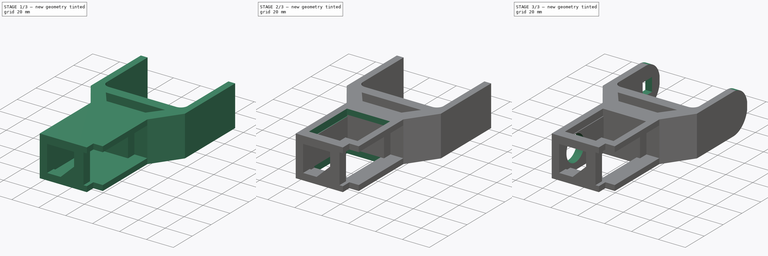
[diagram: build sequence overview — one tinted view per stage of 3, left to right]
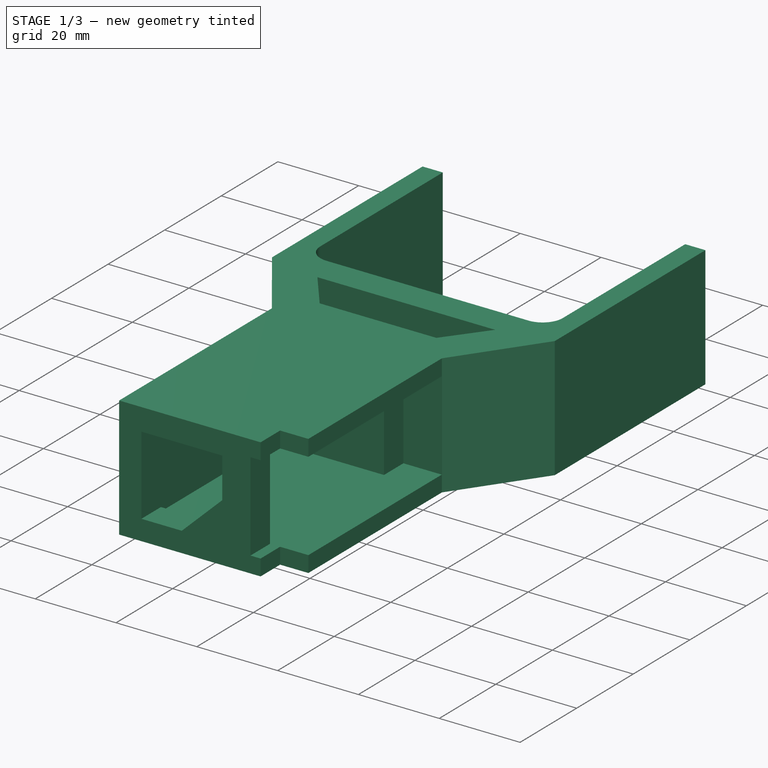
[diagram: stage 1 of 3 — iso view after this stage's code; geometry added in this stage tinted green]
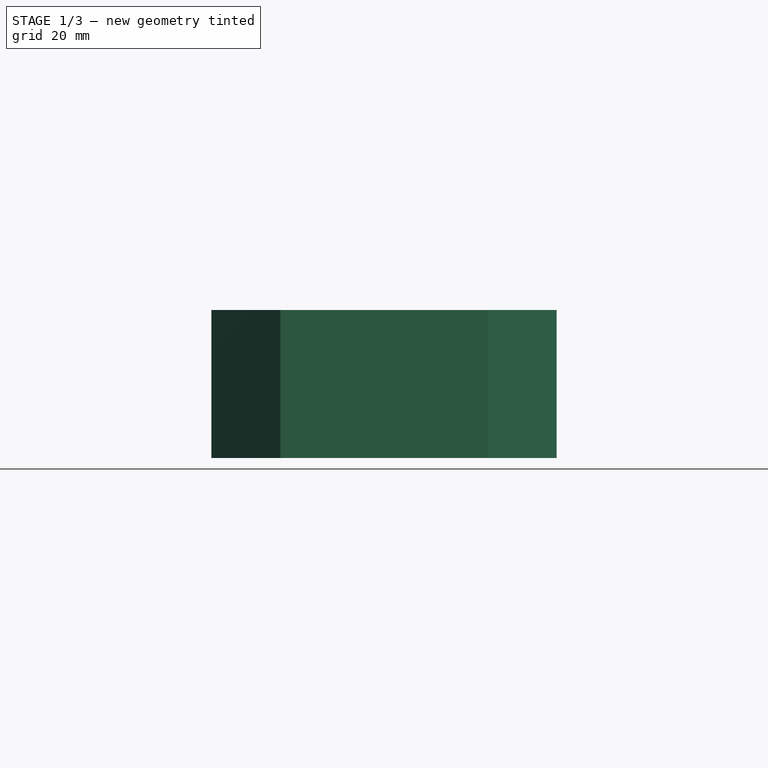
[diagram: stage 1 of 3 — front view after this stage's code; geometry added in this stage tinted green]
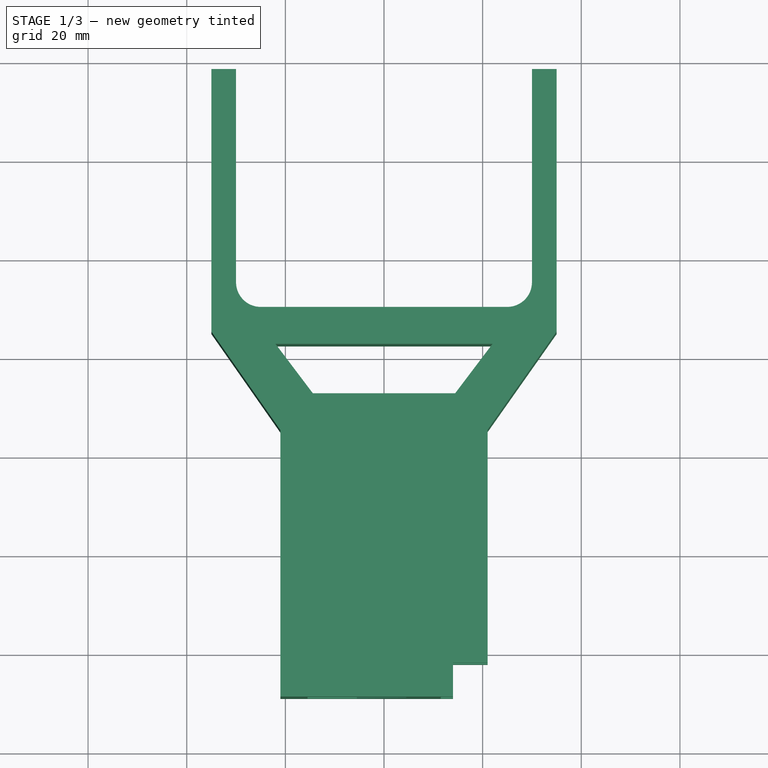
[diagram: stage 1 of 3 — top view after this stage's code; geometry added in this stage tinted green]
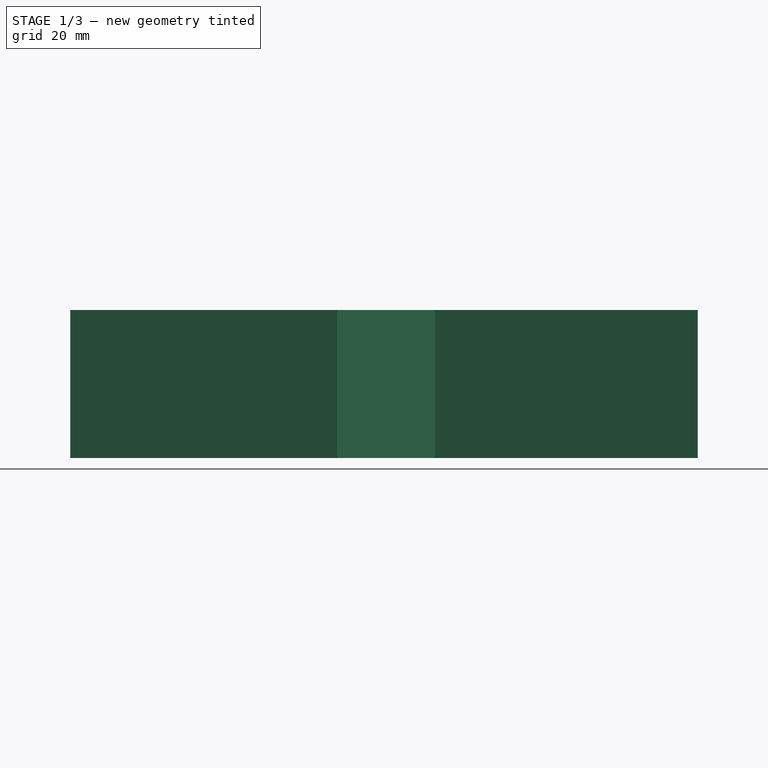
[diagram: stage 1 of 3 — right view after this stage's code; geometry added in this stage tinted green]
FCSTD DOCUMENT  (FreeCAD 0.20R29410 (Git))
Label: femur
License: All rights reserved
LicenseURL: http://en.wikipedia.org/wiki/All_rights_reserved
objects: Sketcher::SketchObject×9, PartDesign::Pocket×7, PartDesign::Pad×1, PartDesign::Body×1
note: 26 computed .brp shape members not serialized (recipe doc carries the construction recipe); baked Part::Feature solids carry a one-line shape summary decoded from their .brp

FEATURE [Sketcher::SketchObject] Sketch
  FullyConstrained = true
  MapMode = 5
  Support = -> [XY_Plane]
  sketch-geometry (26):
    g0: LineSegment StartX=-35 StartY=98.35 StartZ=0 EndX=-35 EndY=45.1 EndZ=0
    g1: LineSegment StartX=-35 StartY=45.1 StartZ=0 EndX=-21 EndY=25.1 EndZ=0
    g2: LineSegment StartX=-21 StartY=25.1 StartZ=0 EndX=-21 EndY=-28.9 EndZ=0
    g3: LineSegment StartX=-21 StartY=-28.9 StartZ=0 EndX=14 EndY=-28.9 EndZ=0
    g4: LineSegment StartX=14 StartY=-28.9 StartZ=0 EndX=14 EndY=-22 EndZ=0
    g5: LineSegment StartX=14 StartY=-22 StartZ=0 EndX=21 EndY=-22 EndZ=0
    g6: LineSegment StartX=21 StartY=-22 StartZ=0 EndX=21 EndY=25.2 EndZ=0
    g7: LineSegment StartX=21 StartY=25.2 StartZ=0 EndX=35 EndY=45.1 EndZ=0
    g8: LineSegment StartX=35 StartY=45.1 StartZ=0 EndX=35 EndY=98.35 EndZ=0
    g9: LineSegment StartX=35 StartY=98.35 StartZ=0 EndX=30 EndY=98.35 EndZ=0
    g10: LineSegment StartX=30 StartY=98.35 StartZ=0 EndX=30 EndY=55.1 EndZ=0
    g11: LineSegment StartX=-30 StartY=55.1 StartZ=0 EndX=-30 EndY=98.35 EndZ=0
    g12: LineSegment StartX=-30 StartY=98.35 StartZ=0 EndX=-35 EndY=98.35 EndZ=0
    g13: GeomPoint X=0 Y=-14.65 Z=0
    g14: GeomPoint X=-3 Y=85.35 Z=0
    g15: ArcOfCircle CenterX=-25 CenterY=55.1 CenterZ=0 NormalX=0 NormalY=0 NormalZ=1 AngleXU=0 Radius=5 StartAngle=3.14159 EndAngle=4.71239
    g16: ArcOfCircle CenterX=25 CenterY=55.1 CenterZ=0 NormalX=0 NormalY=0 NormalZ=1 AngleXU=0 Radius=5 StartAngle=4.71239 EndAngle=6.28319
    g17: Circle CenterX=-25 CenterY=50.1 CenterZ=0 NormalX=0 NormalY=0 NormalZ=1 AngleXU=0 Radius=1
    g18: Circle CenterX=25 CenterY=50.1 CenterZ=0 NormalX=0 NormalY=0 NormalZ=1 AngleXU=0 Radius=1
    g19: BSplineCurve PolesCount=2 KnotsCount=2 Degree=1 IsPeriodic=0
    g20: GeomPoint X=-25 Y=50.1 Z=0
    g21: GeomPoint X=25 Y=50.1 Z=0
    g22: LineSegment StartX=-22 StartY=42.6 StartZ=0 EndX=-14.4375 EndY=32.6 EndZ=0
    g23: LineSegment StartX=-14.4375 StartY=32.6 StartZ=0 EndX=14.4375 EndY=32.6 EndZ=0
    g24: LineSegment StartX=14.4375 StartY=32.6 StartZ=0 EndX=22 EndY=42.6 EndZ=0
    g25: LineSegment StartX=22 StartY=42.6 StartZ=0 EndX=-22 EndY=42.6 EndZ=0
  constraints (72):
    c: Vertical(g0)
    c: Coincident(g0,g1)
    c: Coincident(g1,g2)
    c: Vertical(g2)
    c: Coincident(g2,g3)
    c: Horizontal(g3)
    c: Coincident(g3,g4)
    c: Coincident(g4,g5)
    c: Horizontal(g5)
    c: Coincident(g5,g6)
    c: Coincident(g6,g7)
    c: Coincident(g7,g8)
    c: Vertical(g8)
    c: Coincident(g8,g9)
    c: Coincident(g9,g10)
    c: Vertical(g11)
    c: Coincident(g11,g12)
    c: Coincident(g12,g0)
    c: DistanceX(g11,g10) = 60
    c: DistanceX(g9,g9) = 5
    c: DistanceX(g12,g12) = 5
    c: DistanceX(g3,g3) = 35
    c: DistanceX(g5,g5) = 7
    c: Perpendicular(g-1,g4)
    c: Perpendicular(g-2,g12)
    c: Perpendicular(g-2,g9)
    c: DistanceY(g2,g2) = 54
    c: DistanceY(g6,g6) = 47.2
    c: DistanceY(g4,g4) = 6.9
    c: Perpendicular(g-1,g10)
    c: DistanceY(g10,g10) = 43.25
    c: DistanceY(g11,g11) = 43.25
    c: DistanceX(g1,g6) = 42
    c: DistanceY(g13,g14) = 100
    c: DistanceX(g0,g14) = 32
    c: DistanceY(g2,g13) = 14.25
    c: DistanceX(g2,g13) = 21
    c: DistanceX(g0,g1) = 14
    c: DistanceY(g5,g-1) = 22
    c: DistanceX(g13,g-1) = 0
    c: Coincident(g15,g11)
    c: Radius(g15) = 5
    c: DistanceY(g15,g11) = 5
    c: DistanceY(g0,g11) = 10
    c: Coincident(g16,g10)
    c: Radius(g16) = 5
    c: DistanceX(g16,g10) = 5
    c: DistanceY(g7,g10) = 10
    c: Weight(g17) = 1
    c: Coincident(g19,g15)
    c: Equal(g17,g18)
    c: Coincident(g19,g16)
    c: InternalAlignment(g17,g19)
    c: InternalAlignment(g18,g19)
    c: InternalAlignment(g20,g19)
    c: InternalAlignment(g21,g19)
    c: DistanceX(g0,g15) = 10
    c: DistanceY(g16,g14) = 35.25
    c: DistanceY(g15,g14) = 35.25
    c: DistanceY(g16,g10) = 5
    c: Coincident(g23,g22)
    c: Horizontal(g23)
    c: Coincident(g24,g23)
    c: Coincident(g25,g24)
    c: Coincident(g25,g22)
    c: Horizontal(g25)
    c: DistanceY(g22,g15) = 7.5
    c: DistanceX(g25,g25) = 44
    c: DistanceY(g1,g22) = 7.5
    c: DistanceX(g23,g23) = 28.875
    c: DistanceX(g22,g22) = 7.5625
    c: DistanceX(g22,g-1) = 22
FEATURE [PartDesign::Pad] Pad  label="MainPad"
  Direction = (0,0,1)
  Length = 30
  Length2 = 10
  Profile = -> Sketch
  ReferenceAxis = -> Sketch [N_Axis]
  Type = 0
FEATURE [Sketcher::SketchObject] Sketch001
  AttachmentOffset = pos=(0,0,4) rot=(0,0,1;0rad)
  FullyConstrained = true
  MapMode = 5
  Placement = pos=(0,0,4) rot=(0,0,1;0rad)
  Support = -> [XY_Plane]
  sketch-geometry (18):
    g0: LineSegment StartX=-15.5 StartY=18.3 StartZ=0 EndX=-15.5 EndY=-22 EndZ=0
    g1: LineSegment StartX=-15.5 StartY=-22 StartZ=0 EndX=11.5 EndY=-22 EndZ=0
    g2: LineSegment StartX=11.5 StartY=-22 StartZ=0 EndX=11.5 EndY=-28.9 EndZ=0
    g3: LineSegment StartX=11.5 StartY=-28.9 StartZ=0 EndX=14 EndY=-28.9 EndZ=0
    g4: LineSegment StartX=14 StartY=-28.9 StartZ=0 EndX=14 EndY=-22 EndZ=0
    g5: LineSegment StartX=14 StartY=-22 StartZ=0 EndX=21 EndY=-22 EndZ=0
    g6: LineSegment StartX=21 StartY=-22 StartZ=0 EndX=21 EndY=-18 EndZ=0
    g7: LineSegment StartX=21 StartY=-18 StartZ=0 EndX=27.5 EndY=-18 EndZ=0
    g8: LineSegment StartX=27.5 StartY=-18 StartZ=0 EndX=27.5 EndY=-12 EndZ=0
    g9: LineSegment StartX=27.5 StartY=-12 StartZ=0 EndX=21 EndY=-12 EndZ=0
    g10: LineSegment StartX=21 StartY=-12 StartZ=0 EndX=21 EndY=12.3 EndZ=0
    g11: LineSegment StartX=21 StartY=12.3 StartZ=0 EndX=21 EndY=12.3 EndZ=0
    g12: LineSegment StartX=21 StartY=12.3 StartZ=0 EndX=21 EndY=18.3 EndZ=0
    g13: LineSegment StartX=21 StartY=18.3 StartZ=0 EndX=21 EndY=18.3 EndZ=0
    g14: LineSegment StartX=21 StartY=18.3 StartZ=0 EndX=21 EndY=25.15 EndZ=0
    g15: LineSegment StartX=21 StartY=25.15 StartZ=0 EndX=11.5 EndY=25.15 EndZ=0
    g16: LineSegment StartX=11.5 StartY=25.15 StartZ=0 EndX=11.5 EndY=18.3 EndZ=0
    g17: LineSegment StartX=11.5 StartY=18.3 StartZ=0 EndX=-15.5 EndY=18.3 EndZ=0
  constraints (54):
    c: Coincident(g0,g1)
    c: Coincident(g1,g2)
    c: Coincident(g2,g3)
    c: Coincident(g3,g4)
    c: Coincident(g4,g5)
    c: Horizontal(g5)
    c: Coincident(g5,g6)
    c: Vertical(g6)
    c: Coincident(g6,g7)
    c: Horizontal(g7)
    c: Coincident(g7,g8)
    c: Coincident(g8,g9)
    c: Horizontal(g9)
    c: Coincident(g9,g10)
    c: Vertical(g10)
    c: Coincident(g10,g11)
    c: Horizontal(g11)
    c: Coincident(g11,g12)
    c: Coincident(g12,g13)
    c: Horizontal(g13)
    c: Coincident(g13,g14)
    c: Coincident(g14,g15)
    c: Coincident(g15,g16)
    c: Vertical(g16)
    c: Coincident(g16,g17)
    c: Coincident(g17,g0)
    c: Perpendicular(g-1,g0)
    c: Perpendicular(g-2,g1)
    c: Perpendicular(g-1,g2)
    c: Perpendicular(g-1,g4)
    c: Perpendicular(g-2,g3)
    c: Perpendicular(g-2,g15)
    c: Perpendicular(g-2,g17)
    c: Perpendicular(g-1,g12)
    c: Perpendicular(g-1,g8)
    c: DistanceY(g0,g0) = 40.3
    c: DistanceY(g2,g2) = 6.9
    c: DistanceX(g3,g3) = 2.5
    c: DistanceX(g5,g5) = 7
    c: DistanceX(g1,g1) = 27
    c: DistanceY(g4,g4) = 6.9
    c: DistanceX(g15,g15) = 9.5
    c: DistanceX(g17,g17) = 27
    c: DistanceY(g16,g16) = 6.85
    c: DistanceY(g14,g14) = 6.85
    c: DistanceX(g9,g9) = 6.5
    c: DistanceX(g7,g7) = 6.5
    c: DistanceY(g8,g8) = 6
    c: DistanceY(g12,g12) = 6
    c: DistanceY(g6,g6) = 4
    c: DistanceX(g-1,g5) = 21
    c: DistanceX(g13,g14) = 0
    c: DistanceX(g12,g13) = 0
    c: DistanceY(g5,g-1) = 22
FEATURE [Sketcher::SketchObject] Sketch002  label="ServoSketch"
  FullyConstrained = false
  MapMode = 5
  Support = -> [XY_Plane]
  sketch-geometry (18):
    g0: LineSegment StartX=-11.7659 StartY=18.631 StartZ=0 EndX=-11.7659 EndY=-21.669 EndZ=0
    g1: LineSegment StartX=-11.7659 StartY=-21.669 StartZ=0 EndX=15.2341 EndY=-21.669 EndZ=0
    g2: LineSegment StartX=15.2341 StartY=-21.669 StartZ=0 EndX=15.2341 EndY=-28.519 EndZ=0
    g3: LineSegment StartX=15.2341 StartY=-28.519 StartZ=0 EndX=17.7341 EndY=-28.519 EndZ=0
    g4: LineSegment StartX=17.7341 StartY=-28.519 StartZ=0 EndX=17.7341 EndY=-21.669 EndZ=0
    g5: LineSegment StartX=17.7341 StartY=-21.669 StartZ=0 EndX=24.7341 EndY=-21.669 EndZ=0
    g6: LineSegment StartX=24.7341 StartY=-21.669 StartZ=0 EndX=24.7341 EndY=-17.669 EndZ=0
    g7: LineSegment StartX=24.7341 StartY=-17.669 StartZ=0 EndX=31.2341 EndY=-17.669 EndZ=0
    g8: LineSegment StartX=31.2341 StartY=-17.669 StartZ=0 EndX=31.2341 EndY=-11.669 EndZ=0
    g9: LineSegment StartX=31.2341 StartY=-11.669 StartZ=0 EndX=24.7341 EndY=-11.669 EndZ=0
    g10: LineSegment StartX=24.7341 StartY=-11.669 StartZ=0 EndX=24.7341 EndY=12.631 EndZ=0
    g11: LineSegment StartX=24.7341 StartY=12.631 StartZ=0 EndX=22.7341 EndY=12.631 EndZ=0
    g12: LineSegment StartX=22.7341 StartY=12.631 StartZ=0 EndX=22.7341 EndY=18.631 EndZ=0
    g13: LineSegment StartX=22.7341 StartY=18.631 StartZ=0 EndX=17.7341 EndY=18.631 EndZ=0
    g14: LineSegment StartX=17.7341 StartY=18.631 StartZ=0 EndX=17.7341 EndY=25.481 EndZ=0
    g15: LineSegment StartX=17.7341 StartY=25.481 StartZ=0 EndX=15.2341 EndY=25.481 EndZ=0
    g16: LineSegment StartX=15.2341 StartY=25.481 StartZ=0 EndX=15.2341 EndY=18.631 EndZ=0
    g17: LineSegment StartX=15.2341 StartY=18.631 StartZ=0 EndX=-11.7659 EndY=18.631 EndZ=0
  constraints (52):
    c: Coincident(g0,g1)
    c: Coincident(g1,g2)
    c: Coincident(g2,g3)
    c: Coincident(g3,g4)
    c: Coincident(g4,g5)
    c: Horizontal(g5)
    c: Coincident(g5,g6)
    c: Vertical(g6)
    c: Coincident(g6,g7)
    c: Horizontal(g7)
    c: Coincident(g7,g8)
    c: Coincident(g8,g9)
    c: Horizontal(g9)
    c: Coincident(g9,g10)
    c: Vertical(g10)
    c: Coincident(g10,g11)
    c: Horizontal(g11)
    c: Coincident(g11,g12)
    c: Coincident(g12,g13)
    c: Horizontal(g13)
    c: Coincident(g13,g14)
    c: Coincident(g14,g15)
    c: Coincident(g15,g16)
    c: Vertical(g16)
    c: Coincident(g16,g17)
    c: Coincident(g17,g0)
    c: Perpendicular(g-1,g0)
    c: Perpendicular(g-2,g1)
    c: Perpendicular(g-1,g2)
    c: Perpendicular(g-1,g4)
    c: Perpendicular(g-2,g3)
    c: Perpendicular(g-2,g15)
    c: Perpendicular(g-2,g17)
    c: Perpendicular(g-1,g12)
    c: Perpendicular(g-1,g8)
    c: DistanceY(g0,g0) = 40.3
    c: DistanceY(g2,g2) = 6.85
    c: DistanceX(g3,g3) = 2.5
    c: DistanceX(g5,g5) = 7
    c: DistanceX(g1,g1) = 27
    c: DistanceY(g4,g4) = 6.85
    c: DistanceX(g13,g13) = 5
    c: DistanceX(g11,g11) = 2
    c: DistanceX(g15,g15) = 2.5
    c: DistanceX(g17,g17) = 27
    c: DistanceY(g16,g16) = 6.85
    c: DistanceY(g14,g14) = 6.85
    c: DistanceX(g9,g9) = 6.5
    c: DistanceX(g7,g7) = 6.5
    c: DistanceY(g8,g8) = 6
    c: DistanceY(g12,g12) = 6
    c: DistanceY(g6,g6) = 4
FEATURE [PartDesign::Pocket] Pocket  label="ServoPocket"
  BaseFeature = -> Pad
  Direction = (0,0,-1)
  Length = 22
  Length2 = 5
  Profile = -> Sketch001
  ReferenceAxis = -> Sketch001 [N_Axis]
  Reversed = true
  Type = 0
FEATURE [Sketcher::SketchObject] Sketch003
  AttachmentOffset = pos=(-15.5,5,28.9) rot=(0,0,1;0rad)
  FullyConstrained = false
  MapMode = 5
  Placement = pos=(-15.5,-28.9,5) rot=(1,0,0;1.5708rad)
  Support = -> [XZ_Plane]
  sketch-geometry (5):
    g0: LineSegment StartX=20.0309 StartY=9.53584 StartZ=0 EndX=10 EndY=0 EndZ=0
    g1: LineSegment StartX=10 StartY=0 StartZ=0 EndX=0 EndY=0 EndZ=0
    g2: LineSegment StartX=0 StartY=0 StartZ=0 EndX=0 EndY=19.5 EndZ=0
    g3: LineSegment StartX=0 StartY=19.5 StartZ=0 EndX=20 EndY=19.5 EndZ=0
    g4: LineSegment StartX=20 StartY=19.5 StartZ=0 EndX=20.0309 EndY=9.53584 EndZ=0
  constraints (13):
    c: Coincident(g0,g1)
    c: Horizontal(g1)
    c: Coincident(g1,g2)
    c: Vertical(g2)
    c: Coincident(g2,g3)
    c: DistanceX(g3,g3) = 20
    c: Perpendicular(g-2,g3)
    c: DistanceX(g1,g1) = 10
    c: DistanceY(g2,g2) = 19.5
    c: DistanceY(g-1,g0) = 0
    c: DistanceX(g2,g-1) = 0
    c: Coincident(g3,g4)
    c: Coincident(g4,g0)
FEATURE [PartDesign::Pocket] Pocket001  label="FrontPocket"
  BaseFeature = -> Pocket
  Direction = (0,1,2e-16)
  Length = 6.9
  Length2 = 5
  Profile = -> Sketch003
  ReferenceAxis = -> Sketch003 [N_Axis]
  Type = 0
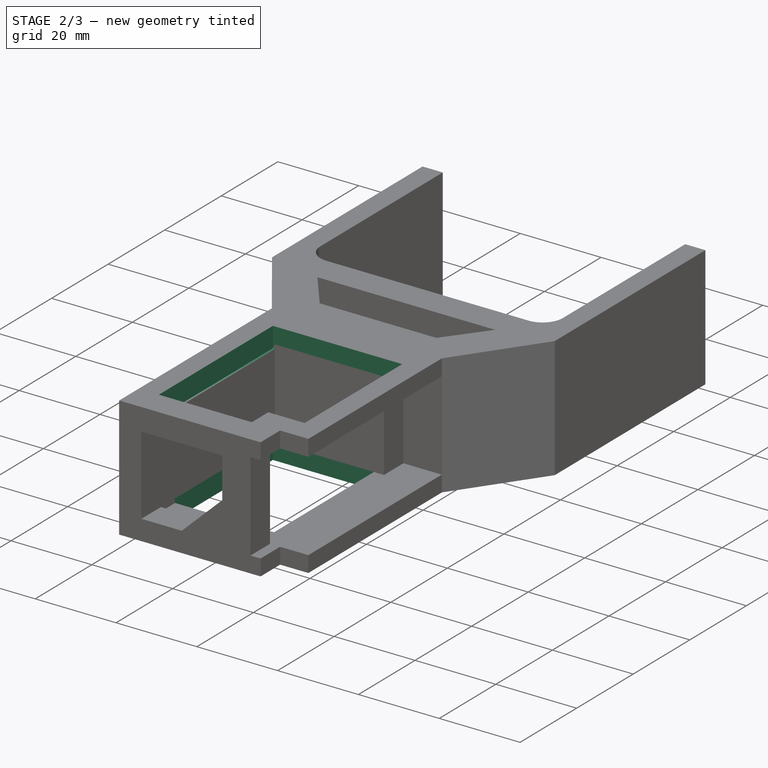
[diagram: stage 2 of 3 — iso view after this stage's code; geometry added in this stage tinted green]
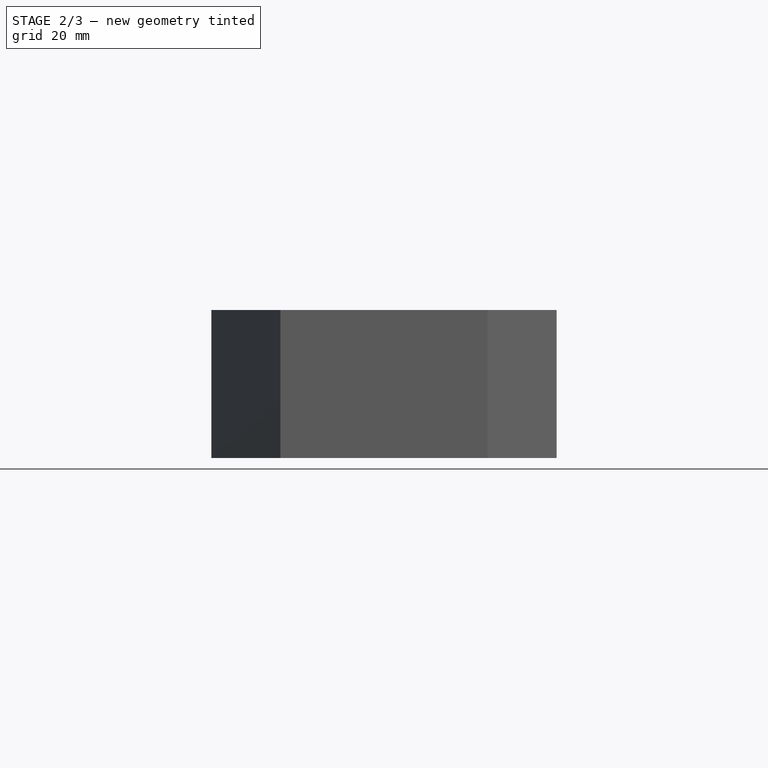
[diagram: stage 2 of 3 — front view after this stage's code; geometry added in this stage tinted green]
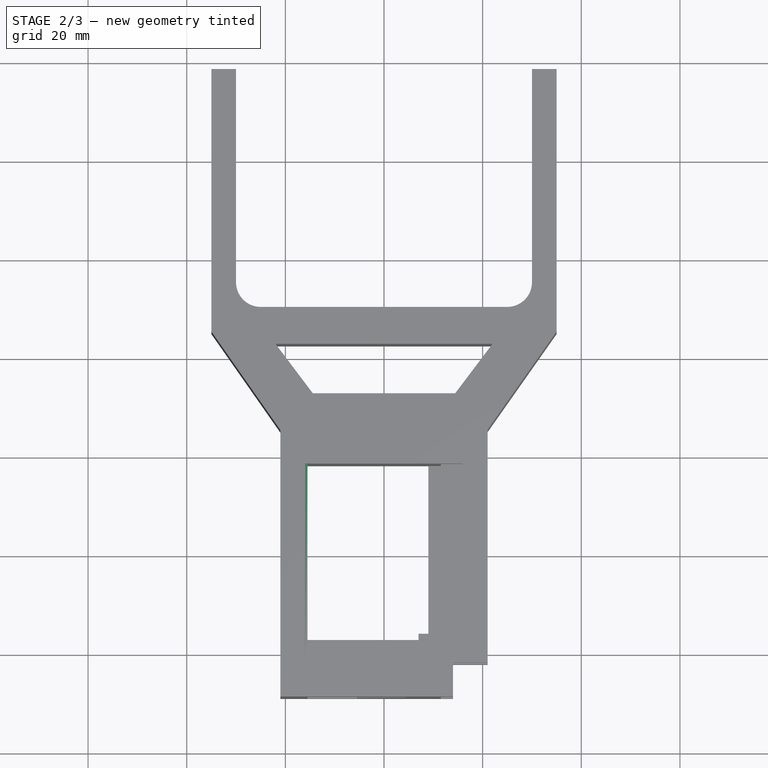
[diagram: stage 2 of 3 — top view after this stage's code; geometry added in this stage tinted green]
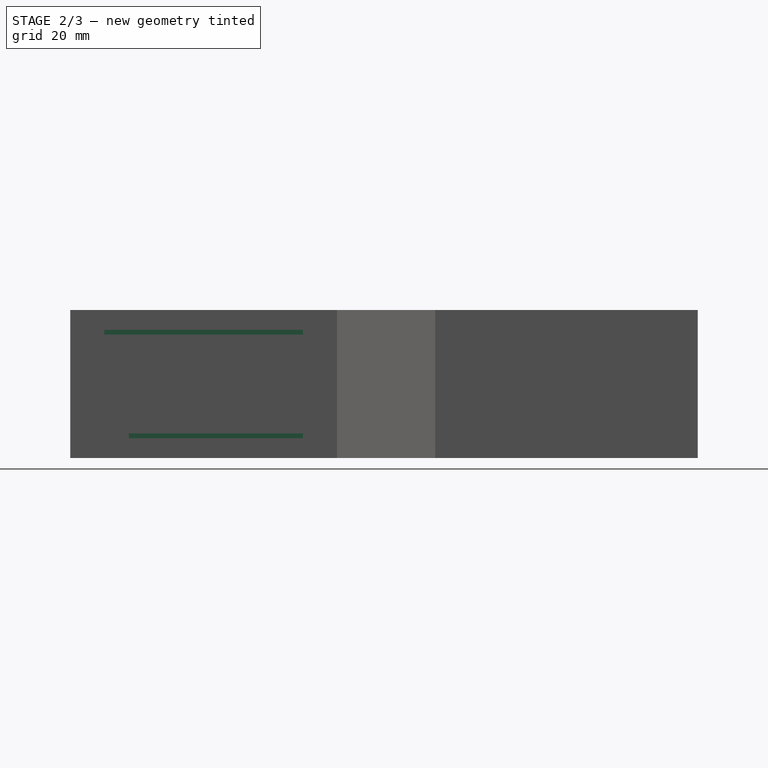
[diagram: stage 2 of 3 — right view after this stage's code; geometry added in this stage tinted green]
FEATURE [Sketcher::SketchObject] Sketch004
  AttachmentOffset = pos=(0,0,5) rot=(0,0,1;0rad)
  FullyConstrained = false
  MapMode = 5
  Placement = pos=(0,0,5) rot=(0,0,1;0rad)
  Support = -> [XY_Plane]
  sketch-geometry (5):
    g0: LineSegment StartX=-16 StartY=18.3 StartZ=0 EndX=-16 EndY=-17 EndZ=0
    g1: LineSegment StartX=-16 StartY=-17 StartZ=0 EndX=9 EndY=-17 EndZ=0
    g2: LineSegment StartX=9 StartY=18.3 StartZ=0 EndX=-16 EndY=18.3 EndZ=0
    g3: LineSegment StartX=9 StartY=-17 StartZ=0 EndX=9 EndY=-16.1143 EndZ=0
    g4: LineSegment StartX=9 StartY=18.3 StartZ=0 EndX=9 EndY=-16.1143 EndZ=0
  constraints (14):
    c: Coincident(g0,g1)
    c: Coincident(g2,g0)
    c: Perpendicular(g-1,g0)
    c: Perpendicular(g-2,g1)
    c: Perpendicular(g-2,g2)
    c: DistanceY(g0,g0) = 35.3
    c: DistanceX(g1,g1) = 25
    c: DistanceX(g2,g2) = 25
    c: Coincident(g1,g3)
    c: Vertical(g3)
    c: Coincident(g2,g4)
    c: Coincident(g4,g3)
    c: DistanceX(g-1,g2) = 9
    c: DistanceY(g1,g-1) = 17
FEATURE [PartDesign::Pocket] Pocket002  label="UnderServoPocket"
  BaseFeature = -> Pocket001
  Direction = (0,0,-1)
  Length = 5
  Length2 = 5
  Profile = -> Sketch004
  ReferenceAxis = -> Sketch004 [N_Axis]
  Type = 0
FEATURE [Sketcher::SketchObject] Sketch005
  AttachmentOffset = pos=(0,0,30) rot=(0,0,1;0rad)
  FullyConstrained = false
  MapMode = 5
  Placement = pos=(0,0,30) rot=(0,0,1;0rad)
  Support = -> [XY_Plane]
  sketch-geometry (6):
    g0: LineSegment StartX=-16 StartY=18.3 StartZ=0 EndX=-16 EndY=-22 EndZ=0
    g1: LineSegment StartX=-16 StartY=-22 StartZ=0 EndX=7 EndY=-22 EndZ=0
    g2: LineSegment StartX=16 StartY=18.3 StartZ=0 EndX=-16 EndY=18.3 EndZ=0
    g3: LineSegment StartX=7 StartY=-22 StartZ=0 EndX=7 EndY=-16.1754 EndZ=0
    g4: LineSegment StartX=7 StartY=-16.1754 StartZ=0 EndX=16 EndY=-16.1754 EndZ=0
    g5: LineSegment StartX=16 StartY=-16.1754 StartZ=0 EndX=16 EndY=18.3 EndZ=0
  constraints (16):
    c: Coincident(g0,g1)
    c: Coincident(g2,g0)
    c: Perpendicular(g-1,g0)
    c: Perpendicular(g-2,g1)
    c: Perpendicular(g-2,g2)
    c: DistanceY(g0,g0) = 40.3
    c: DistanceX(g1,g1) = 23
    c: DistanceX(g2,g2) = 32
    c: Coincident(g1,g3)
    c: Vertical(g3)
    c: Coincident(g3,g4)
    c: Coincident(g4,g5)
    c: Coincident(g5,g2)
    c: DistanceX(g4,g4) = 9
    c: Perpendicular(g-2,g4)
    c: DistanceX(g-1,g2) = 16
FEATURE [PartDesign::Pocket] Pocket003  label="OverServoPocket"
  BaseFeature = -> Pocket002
  Direction = (0,0,-1)
  Length = 5
  Length2 = 5
  Profile = -> Sketch005
  ReferenceAxis = -> Sketch005 [N_Axis]
  Type = 0
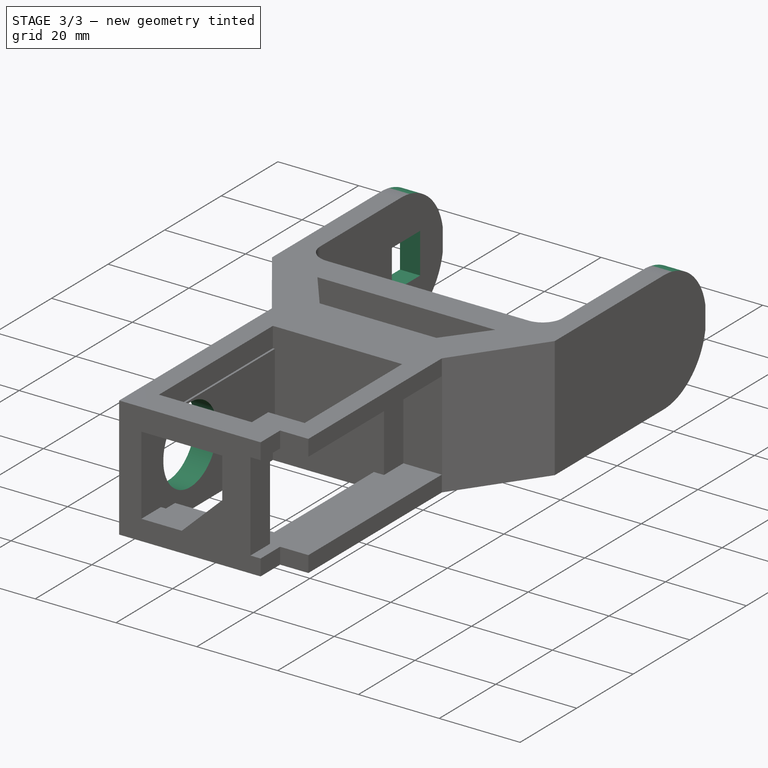
[diagram: stage 3 of 3 — iso view after this stage's code; geometry added in this stage tinted green]
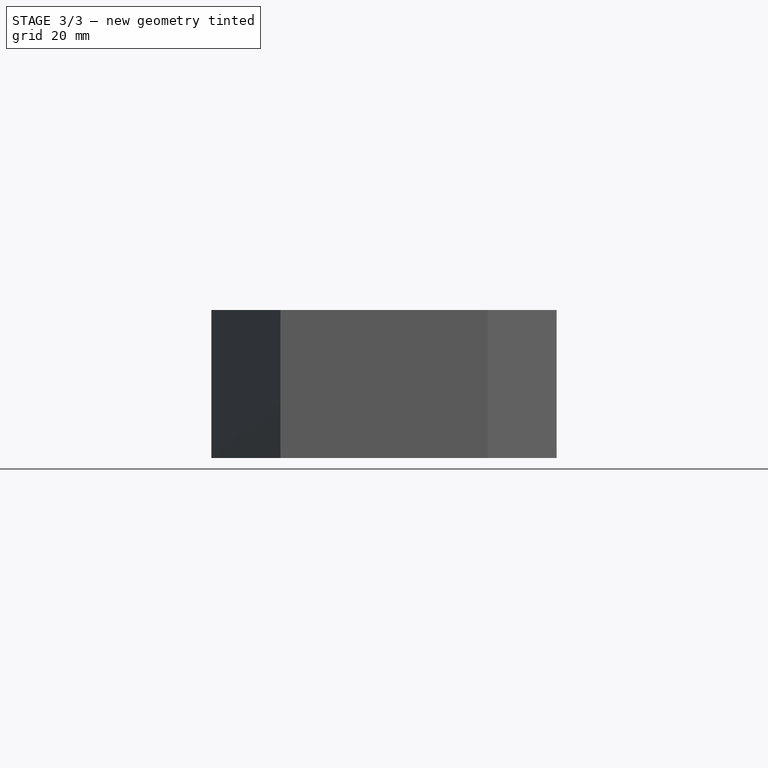
[diagram: stage 3 of 3 — front view after this stage's code; geometry added in this stage tinted green]
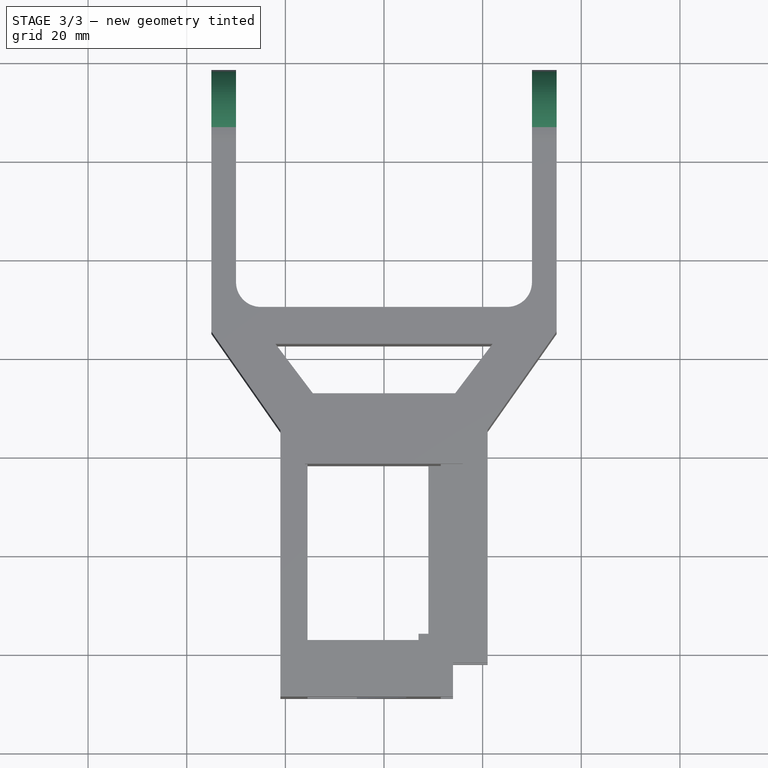
[diagram: stage 3 of 3 — top view after this stage's code; geometry added in this stage tinted green]
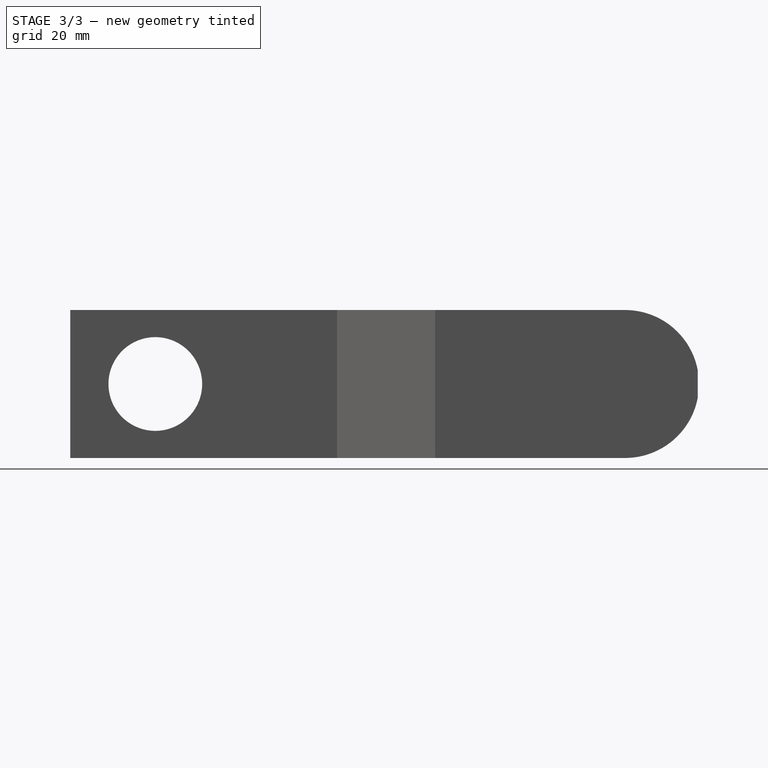
[diagram: stage 3 of 3 — right view after this stage's code; geometry added in this stage tinted green]
FEATURE [Sketcher::SketchObject] Sketch006
  AttachmentOffset = pos=(-22,15,27.65) rot=(0,1,0;1.5708rad)
  FullyConstrained = false
  MapMode = 5
  Placement = pos=(-22,-27.65,15) rot=(0.57735,0.57735,0.57735;2.0944rad)
  Support = -> [XZ_Plane]
  sketch-geometry (1):
    g0: Circle CenterX=16.0051 CenterY=0 CenterZ=0 NormalX=0 NormalY=0 NormalZ=1 AngleXU=0 Radius=9.5
  constraints (2):
    c: Diameter(g0) = 19
    c: DistanceY(g-1,g0) = 0
FEATURE [PartDesign::Pocket] Pocket004  label="BearingPocket"
  BaseFeature = -> Pocket003
  Direction = (-1,0,0)
  Length = 56
  Length2 = 5
  Profile = -> Sketch006
  ReferenceAxis = -> Sketch006 [N_Axis]
  Reversed = true
  Type = 0
FEATURE [Sketcher::SketchObject] Sketch007
  AttachmentOffset = pos=(-50,15,-83.6) rot=(0,1,0;1.5708rad)
  FullyConstrained = true
  MapMode = 5
  Placement = pos=(-50,83.6,15) rot=(0.57735,0.57735,0.57735;2.0944rad)
  Support = -> [XZ_Plane]
  sketch-geometry (4):
    g0: ArcOfCircle CenterX=0 CenterY=0 CenterZ=0 NormalX=0 NormalY=0 NormalZ=1 AngleXU=0 Radius=15 StartAngle=4.71239 EndAngle=7.85398
    g1: LineSegment StartX=4.6e-15 StartY=15 StartZ=0 EndX=15 EndY=15 EndZ=0
    g2: LineSegment StartX=15 StartY=15 StartZ=0 EndX=15 EndY=-15 EndZ=0
    g3: LineSegment StartX=15 StartY=-15 StartZ=0 EndX=0 EndY=-15 EndZ=0
  constraints (12):
    c: Coincident(g0,g-1)
    c: PointOnObject(g0,g-2)
    c: PointOnObject(g0,g-2)
    c: Diameter(g0) = 30
    c: Coincident(g0,g1)
    c: Coincident(g1,g2)
    c: Vertical(g2)
    c: Coincident(g2,g3)
    c: Coincident(g3,g0)
    c: Horizontal(g3)
    c: Horizontal(g1)
    c: Distance(g3) = 15
FEATURE [PartDesign::Pocket] Pocket005  label="RoundingPocket"
  BaseFeature = -> Pocket004
  Direction = (-1,0,0)
  Length = 100
  Length2 = 5
  Profile = -> Sketch007
  ReferenceAxis = -> Sketch007 [N_Axis]
  Reversed = true
  Type = 0
FEATURE [Sketcher::SketchObject] Sketch008
  AttachmentOffset = pos=(-30,15,-83.6) rot=(0,1,0;1.5708rad)
  FullyConstrained = false
  MapMode = 5
  Placement = pos=(-30,83.6,15) rot=(0.57735,0.57735,0.57735;2.0944rad)
  Support = -> [XZ_Plane]
  sketch-geometry (5):
    g0: LineSegment StartX=-3.25 StartY=5 StartZ=0 EndX=6.75 EndY=5 EndZ=0
    g1: LineSegment StartX=6.75 StartY=5 StartZ=0 EndX=6.75 EndY=-5 EndZ=0
    g2: LineSegment StartX=6.75 StartY=-5 StartZ=0 EndX=-3.25 EndY=-5 EndZ=0
    g3: LineSegment StartX=-3.25 StartY=-5 StartZ=0 EndX=-3.25 EndY=5 EndZ=0
    g4: GeomPoint X=1.75 Y=-4e-16 Z=0
  constraints (13):
    c: Coincident(g0,g1)
    c: Coincident(g1,g2)
    c: Coincident(g2,g3)
    c: Coincident(g3,g0)
    c: Horizontal(g0)
    c: Horizontal(g2)
    c: Vertical(g1)
    c: Vertical(g3)
    c: DistanceX(g0,g0) = 10
    c: DistanceY(g1,g1) = 10
    c: DistanceX(g2,g4) = 5
    c: DistanceY(g2,g4) = 5
    c: DistanceX(g-1,g4) = 1.75
FEATURE [PartDesign::Pocket] Pocket006
  BaseFeature = -> Pocket005
  Direction = (-1,0,0)
  Length = 5
  Length2 = 5
  Profile = -> Sketch008
  ReferenceAxis = -> Sketch008 [N_Axis]
  Type = 0
FEATURE [PartDesign::Body] Body  label="MainBody"
  Group = -> [Sketch,Pad,Sketch001,Sketch002,Pocket,Sketch003,Pocket001,Sketch004,Pocket002,Sketch005,Pocket003,Sketch006,Pocket004,Sketch007,Pocket005,Sketch008,Pocket006]
  Origin = -> Origin
  Tip = -> Pocket006
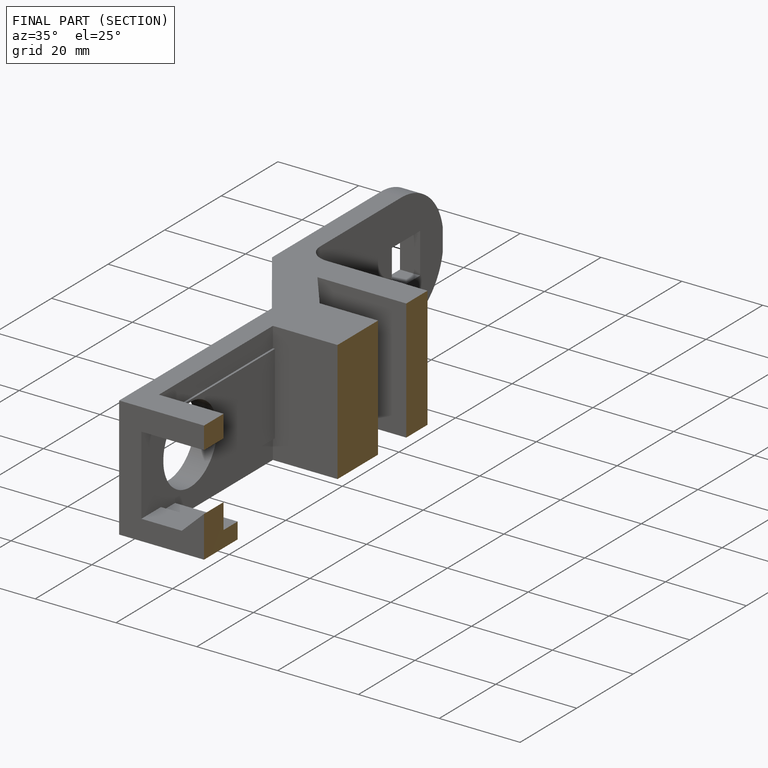
[diagram: finished part — half-section view (interior)]
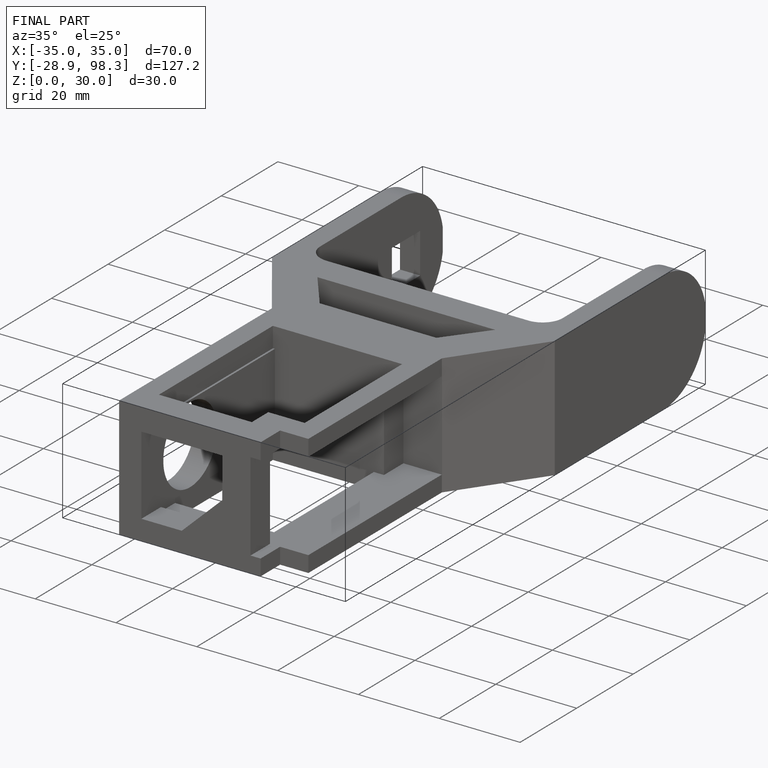
[diagram: finished part — iso view with bounding-box wireframe]
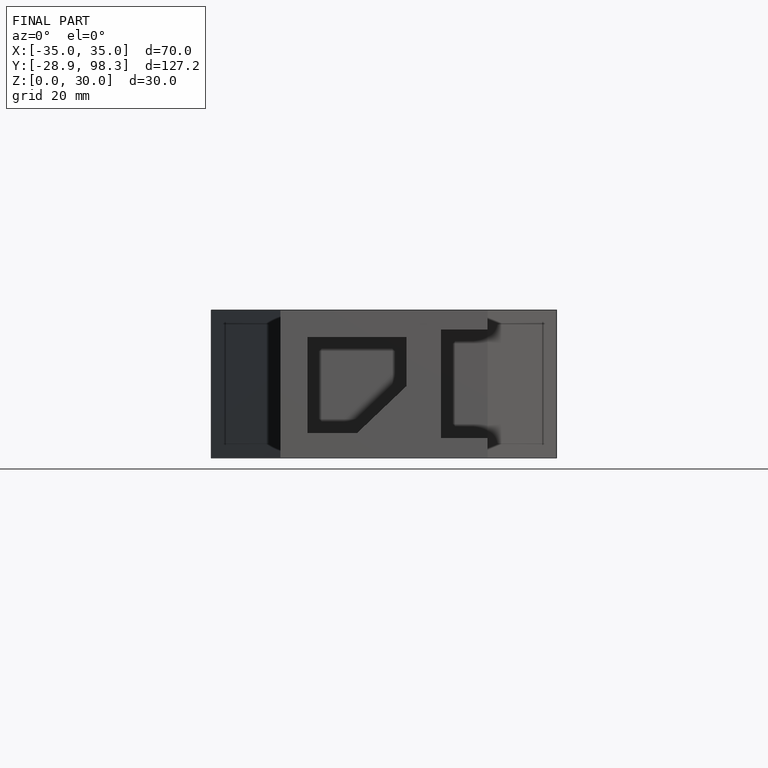
[diagram: finished part — front view with bounding-box wireframe]
